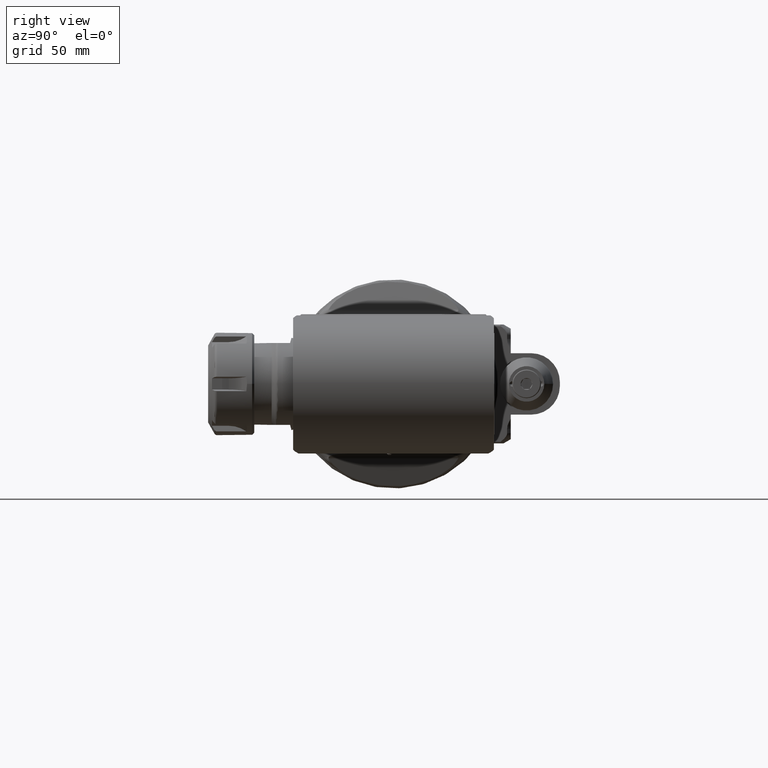
[diagram: clean part render]
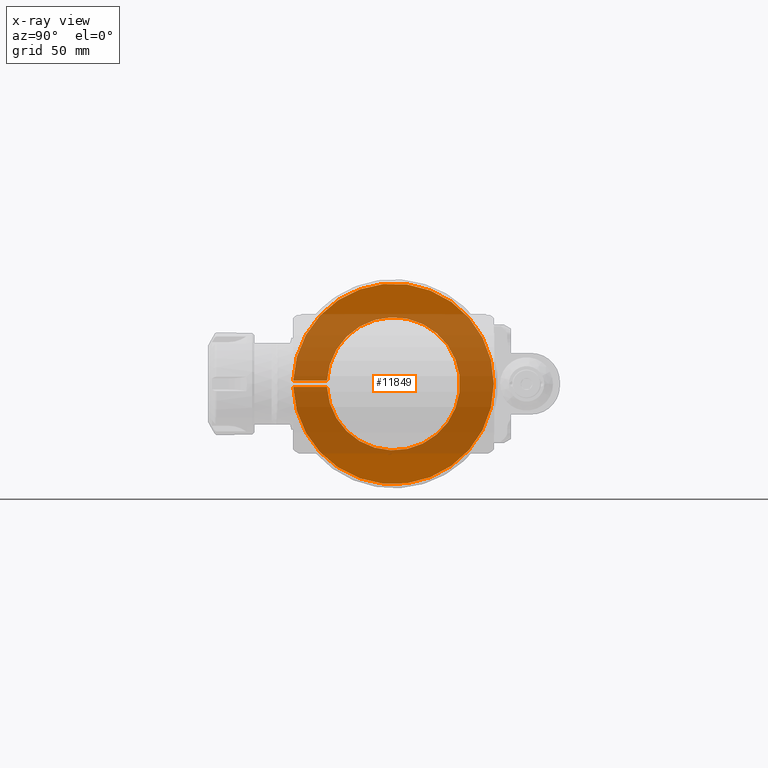
[diagram: x-ray — body ghosted, one internal face saturated and labeled with its STEP entity id]
A machine part, right view, then the same camera in x-ray: the body is ghosted and one INTERNAL B-rep face — a face not visible from any outside direction — is saturated and labeled: STEP entity #11849.
In plain terms, the highlighted planar face has unit normal (1, 0, 0).
Its self-contained STEP definition (entity closure, byte-faithful):
#1256=LINE('',#23069,#2112);
#1261=LINE('',#23103,#2117);
#2112=VECTOR('',#14576,16.51166927349);
#2117=VECTOR('',#14587,16.51166927349);
#2950=FACE_OUTER_BOUND('',#3638,.T.);
#3638=EDGE_LOOP('',(#9220,#9221,#9222,#9223));
#4266=CIRCLE('',#12715,49.);
#4269=CIRCLE('',#12720,32.5);
#5164=VERTEX_POINT('',#23058);
#5165=VERTEX_POINT('',#23062);
#5166=VERTEX_POINT('',#23068);
#5174=VERTEX_POINT('',#23102);
#6623=EDGE_CURVE('',#5165,#5164,#4266,.T.);
#6625=EDGE_CURVE('',#5166,#5165,#1256,.T.);
#6634=EDGE_CURVE('',#5164,#5174,#1261,.T.);
#6635=EDGE_CURVE('',#5174,#5166,#4269,.T.);
#9220=ORIENTED_EDGE('',*,*,#6623,.T.);
#9221=ORIENTED_EDGE('',*,*,#6634,.T.);
#9222=ORIENTED_EDGE('',*,*,#6635,.T.);
#9223=ORIENTED_EDGE('',*,*,#6625,.T.);
#11438=PLANE('',#12719);
#11849=ADVANCED_FACE('',(#2950),#11438,.T.);
#12715=AXIS2_PLACEMENT_3D('',#23063,#14572,#14573);
#12719=AXIS2_PLACEMENT_3D('',#23101,#14585,#14586);
#12720=AXIS2_PLACEMENT_3D('',#23104,#14588,#14589);
#14572=DIRECTION('center_axis',(1.,0.,0.));
#14573=DIRECTION('ref_axis',(0.,1.,0.));
#14576=DIRECTION('',(0.,-1.,0.));
#14585=DIRECTION('center_axis',(1.,0.,0.));
#14586=DIRECTION('ref_axis',(0.,-1.,0.));
#14587=DIRECTION('',(0.,1.,0.));
#14588=DIRECTION('center_axis',(-1.,0.,0.));
#14589=DIRECTION('ref_axis',(0.,-0.998934343430642,0.0461538461538519));
#23058=CARTESIAN_POINT('',(-12.,-48.97703543499,1.5));
#23062=CARTESIAN_POINT('',(-12.,-48.97703543499,-1.5));
#23063=CARTESIAN_POINT('Origin',(-12.,0.,0.));
#23068=CARTESIAN_POINT('',(-12.,-32.4653661615,-1.5));
#23069=CARTESIAN_POINT('',(-12.,-32.4653661615,-1.5));
#23101=CARTESIAN_POINT('Origin',(-12.,-49.13074005203,0.));
#23102=CARTESIAN_POINT('',(-12.,-32.4653661615,1.5));
#23103=CARTESIAN_POINT('',(-12.,-48.97703543499,1.5));
#23104=CARTESIAN_POINT('Origin',(-12.,0.,0.));